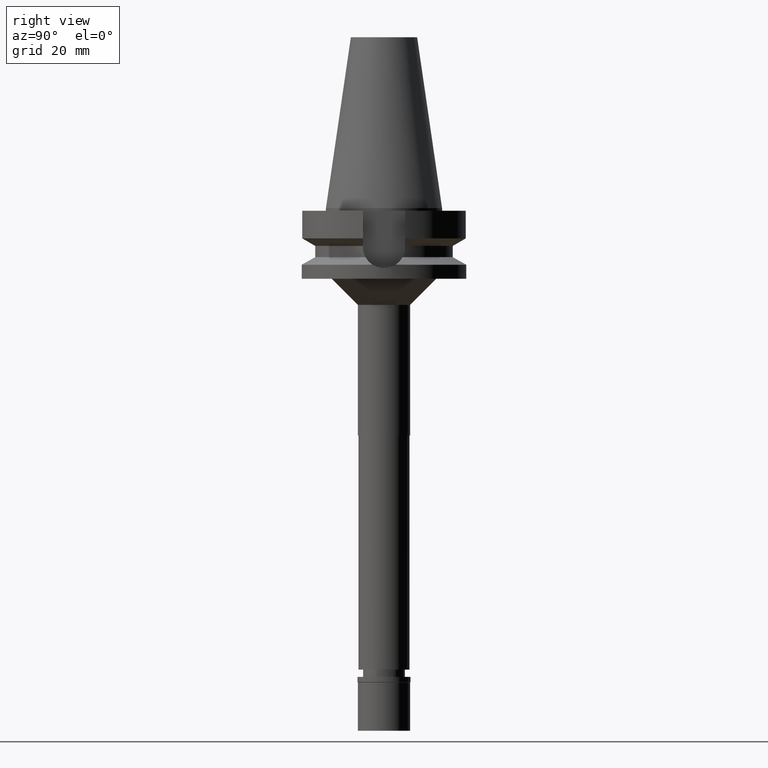
[diagram: clean part render]
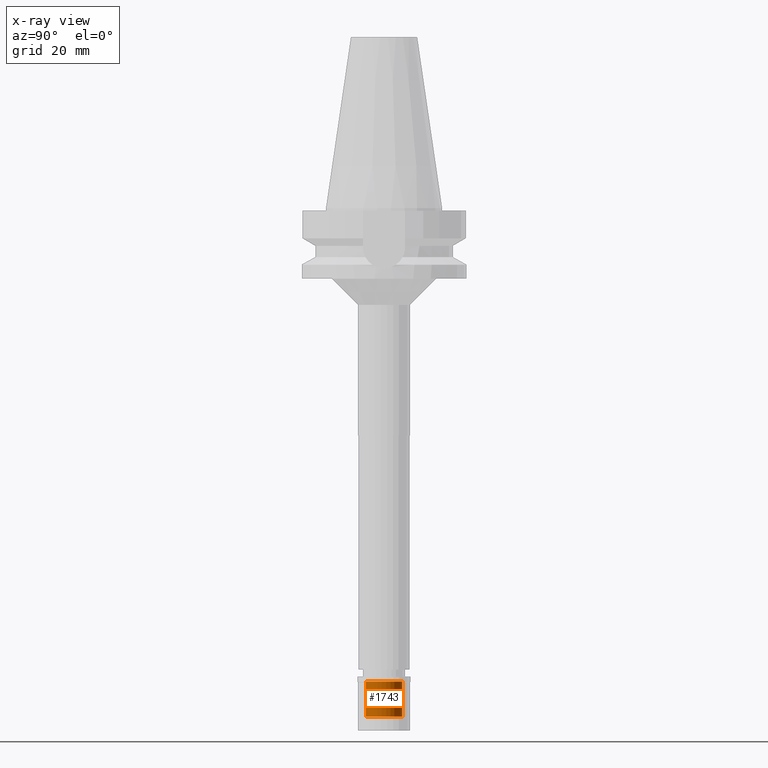
[diagram: x-ray — body ghosted, one internal face saturated and labeled with its STEP entity id]
A machine part, right view, then the same camera in x-ray: the body is ghosted and one INTERNAL B-rep face — a face not visible from any outside direction — is saturated and labeled: STEP entity #1743.
In plain terms, the highlighted cylindrical surface (edge-blend (fillet) strip) has radius 7 mm, axis along (0, 0, -1).
Its self-contained STEP definition (entity closure, byte-faithful):
#51 = ORIENTED_EDGE ( 'NONE', *, *, #593, .T. ) ;
#109 = AXIS2_PLACEMENT_3D ( 'NONE', #2364, #3111, #2589 ) ;
#115 = AXIS2_PLACEMENT_3D ( 'NONE', #2493, #421, #1195 ) ;
#207 = CARTESIAN_POINT ( 'NONE',  ( 0.0000000000000000000, -7.000000000000000000, -1.800000000000000044 ) ) ;
#284 = DIRECTION ( 'NONE',  ( 0.0000000000000000000, 1.000000000000000000, 0.0000000000000000000 ) ) ;
#408 = DIRECTION ( 'NONE',  ( 0.0000000000000000000, 0.0000000000000000000, 1.000000000000000000 ) ) ;
#421 = DIRECTION ( 'NONE',  ( 0.0000000000000000000, 0.0000000000000000000, 1.000000000000000000 ) ) ;
#537 = VECTOR ( 'NONE', #408, 1000.000000000000000 ) ;
#593 = EDGE_CURVE ( 'NONE', #1067, #2957, #1416, .T. ) ;
#735 = ORIENTED_EDGE ( 'NONE', *, *, #2701, .T. ) ;
#878 = EDGE_LOOP ( 'NONE', ( #1268, #51, #735, #1827 ) ) ;
#1061 = EDGE_CURVE ( 'NONE', #2478, #1067, #1155, .T. ) ;
#1067 = VERTEX_POINT ( 'NONE', #1532 ) ;
#1155 = CIRCLE ( 'NONE', #2472, 7.000000000000000000 ) ;
#1195 = DIRECTION ( 'NONE',  ( 0.0000000000000000000, -1.000000000000000000, 0.0000000000000000000 ) ) ;
#1268 = ORIENTED_EDGE ( 'NONE', *, *, #1061, .T. ) ;
#1310 = CIRCLE ( 'NONE', #115, 7.000000000000000000 ) ;
#1416 = LINE ( 'NONE', #3132, #2830 ) ;
#1432 = DIRECTION ( 'NONE',  ( 0.0000000000000000000, 0.0000000000000000000, 1.000000000000000000 ) ) ;
#1532 = CARTESIAN_POINT ( 'NONE',  ( 0.0000000000000000000, -7.000000000000000000, -15.29999999999999893 ) ) ;
#1556 = DIRECTION ( 'NONE',  ( 0.0000000000000000000, 0.0000000000000000000, -1.000000000000000000 ) ) ;
#1613 = FACE_OUTER_BOUND ( 'NONE', #878, .T. ) ;
#1743 = ADVANCED_FACE ( 'NONE', ( #1613 ), #1867, .F. ) ;
#1827 = ORIENTED_EDGE ( 'NONE', *, *, #2631, .F. ) ;
#1867 = CYLINDRICAL_SURFACE ( 'NONE', #109, 7.000000000000000000 ) ;
#2041 = CARTESIAN_POINT ( 'NONE',  ( 0.0000000000000000000, 0.0000000000000000000, -15.29999999999999893 ) ) ;
#2060 = LINE ( 'NONE', #2813, #537 ) ;
#2364 = CARTESIAN_POINT ( 'NONE',  ( 0.0000000000000000000, 0.0000000000000000000, 0.0000000000000000000 ) ) ;
#2472 = AXIS2_PLACEMENT_3D ( 'NONE', #2041, #1556, #284 ) ;
#2478 = VERTEX_POINT ( 'NONE', #3043 ) ;
#2493 = CARTESIAN_POINT ( 'NONE',  ( 0.0000000000000000000, 0.0000000000000000000, -1.800000000000000044 ) ) ;
#2589 = DIRECTION ( 'NONE',  ( 0.0000000000000000000, -1.000000000000000000, 0.0000000000000000000 ) ) ;
#2631 = EDGE_CURVE ( 'NONE', #2478, #3055, #2060, .T. ) ;
#2701 = EDGE_CURVE ( 'NONE', #2957, #3055, #1310, .T. ) ;
#2813 = CARTESIAN_POINT ( 'NONE',  ( 0.0000000000000000000, 7.000000000000000000, -15.29999999999999893 ) ) ;
#2830 = VECTOR ( 'NONE', #1432, 1000.000000000000000 ) ;
#2957 = VERTEX_POINT ( 'NONE', #207 ) ;
#3043 = CARTESIAN_POINT ( 'NONE',  ( 0.0000000000000000000, 7.000000000000000000, -15.29999999999999893 ) ) ;
#3055 = VERTEX_POINT ( 'NONE', #3084 ) ;
#3084 = CARTESIAN_POINT ( 'NONE',  ( 0.0000000000000000000, 7.000000000000000000, -1.800000000000000044 ) ) ;
#3111 = DIRECTION ( 'NONE',  ( 0.0000000000000000000, 0.0000000000000000000, -1.000000000000000000 ) ) ;
#3132 = CARTESIAN_POINT ( 'NONE',  ( 0.0000000000000000000, -7.000000000000000000, -15.29999999999999893 ) ) ;